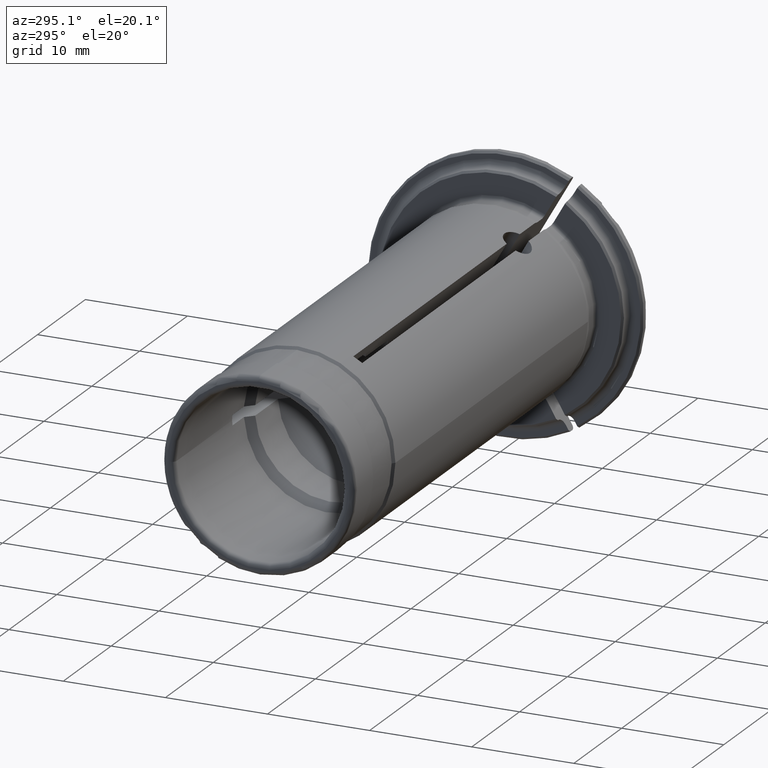
[diagram: clean part render]
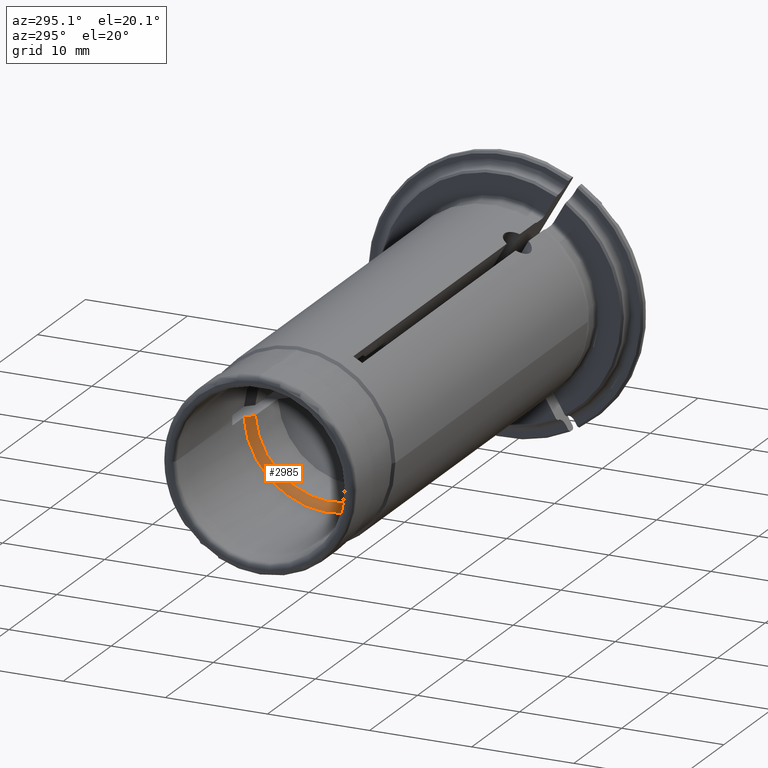
[diagram: same view with one face highlighted and labeled with its STEP entity id]
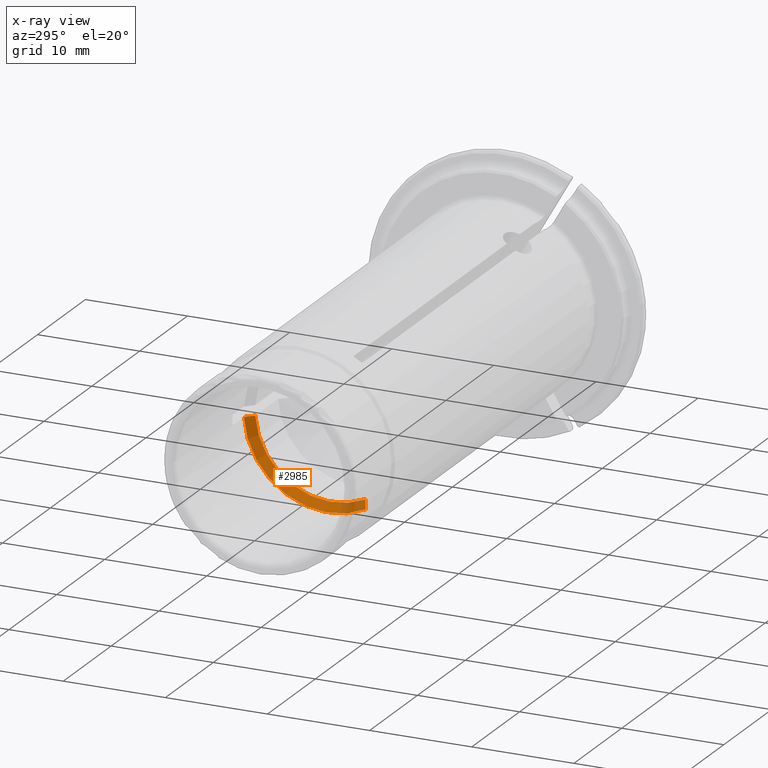
[diagram: x-ray of the same camera — body ghosted, the highlighted face saturated]
A machine part, auxiliary view. The second image highlights one B-rep face of the part: STEP entity #2985.
The next image is the same camera in x-ray: the body ghosted, the highlighted face saturated — about 13% of this face is hidden behind the body in this view.
In plain terms, the highlighted conical surface has half-angle 45 deg.
Its self-contained STEP definition (entity closure, byte-faithful):
#1299=CARTESIAN_POINT('',(-3.525E1,-3.308644684882E0,-6.730740698408E0));
#1300=CARTESIAN_POINT('',(-3.533247209493E1,-3.349972674595E0,
-6.802322876365E0));
#1301=CARTESIAN_POINT('',(-3.549799103610E1,-3.432910588686E0,
-6.945975557445E0));
#1302=CARTESIAN_POINT('',(-3.574800512544E1,-3.558170337955E0,
-7.162931807322E0));
#1303=CARTESIAN_POINT('',(-3.591581194895E1,-3.642233024293E0,
-7.308532651081E0));
#1304=CARTESIAN_POINT('',(-3.6E1,-3.684404571108E0,-7.381575912798E0));
#1306=CARTESIAN_POINT('',(-3.6E1,8.234834546E0,-5.E-1));
#1307=CARTESIAN_POINT('',(-3.591582522169E1,8.150504749554E0,-5.E-1));
#1308=CARTESIAN_POINT('',(-3.574803609465E1,7.982397108973E0,-5.E-1));
#1309=CARTESIAN_POINT('',(-3.549802208832E1,7.731877698749E0,-5.E-1));
#1310=CARTESIAN_POINT('',(-3.533248540262E1,7.565984090342E0,-5.E-1));
#1311=CARTESIAN_POINT('',(-3.525E1,7.483314773548E0,-5.E-1));
#1313=CARTESIAN_POINT('',(-3.525E1,0.E0,0.E0));
#1314=DIRECTION('',(-1.E0,0.E0,0.E0));
#1315=DIRECTION('',(0.E0,9.977753031397E-1,-6.666666666667E-2));
#1316=AXIS2_PLACEMENT_3D('',#1313,#1314,#1315);
#1392=CARTESIAN_POINT('',(-3.6E1,0.E0,0.E0));
#1393=DIRECTION('',(-1.E0,0.E0,0.E0));
#1394=DIRECTION('',(0.E0,9.981617631516E-1,-6.060606060606E-2));
#1395=AXIS2_PLACEMENT_3D('',#1392,#1393,#1394);
#1654=CARTESIAN_POINT('',(-3.525E1,7.483314773548E0,-5.E-1));
#1655=VERTEX_POINT('',#1654);
#1656=CARTESIAN_POINT('',(-3.6E1,8.234834546E0,-5.E-1));
#1658=VERTEX_POINT('',#1656);
#1845=CARTESIAN_POINT('',(-3.525E1,-3.308644684882E0,-6.730740698408E0));
#1846=VERTEX_POINT('',#1845);
#1851=CARTESIAN_POINT('',(-3.6E1,-3.684404571108E0,-7.381575912798E0));
#1853=VERTEX_POINT('',#1851);
#2971=CARTESIAN_POINT('',(-3.5625E1,0.E0,0.E0));
#2972=DIRECTION('',(-1.E0,0.E0,0.E0));
#2973=DIRECTION('',(0.E0,1.E0,0.E0));
#2974=AXIS2_PLACEMENT_3D('',#2971,#2972,#2973);
#2975=CONICAL_SURFACE('',#2974,7.875E0,4.5E1);
#2977=ORIENTED_EDGE('',*,*,#2976,.T.);
#2979=ORIENTED_EDGE('',*,*,#2978,.F.);
#2981=ORIENTED_EDGE('',*,*,#2980,.T.);
#2982=ORIENTED_EDGE('',*,*,#2934,.T.);
#2983=EDGE_LOOP('',(#2977,#2979,#2981,#2982));
#2984=FACE_OUTER_BOUND('',#2983,.F.);
#2985=ADVANCED_FACE('',(#2984),#2975,.F.);
#1305=B_SPLINE_CURVE_WITH_KNOTS('',3,(#1299,#1300,#1301,#1302,#1303,#1304),
.UNSPECIFIED.,.F.,.F.,(4,1,1,4),(0.E0,3.333333333333E-1,6.666666666667E-1,1.E0),
.UNSPECIFIED.);
#1312=B_SPLINE_CURVE_WITH_KNOTS('',3,(#1306,#1307,#1308,#1309,#1310,#1311),
.UNSPECIFIED.,.F.,.F.,(4,1,1,4),(0.E0,3.333333333333E-1,6.666666666667E-1,1.E0),
.UNSPECIFIED.);
#1317=CIRCLE('',#1316,7.5E0);
#1396=CIRCLE('',#1395,8.25E0);
#2934=EDGE_CURVE('',#1655,#1846,#1317,.T.);
#2976=EDGE_CURVE('',#1846,#1853,#1305,.T.);
#2978=EDGE_CURVE('',#1658,#1853,#1396,.T.);
#2980=EDGE_CURVE('',#1658,#1655,#1312,.T.);